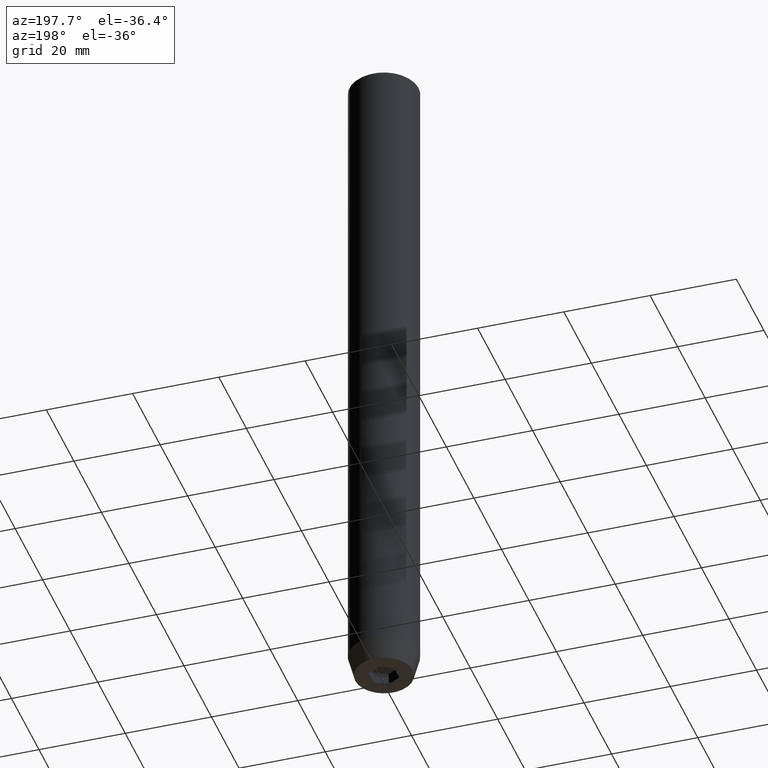
[diagram: clean part render]
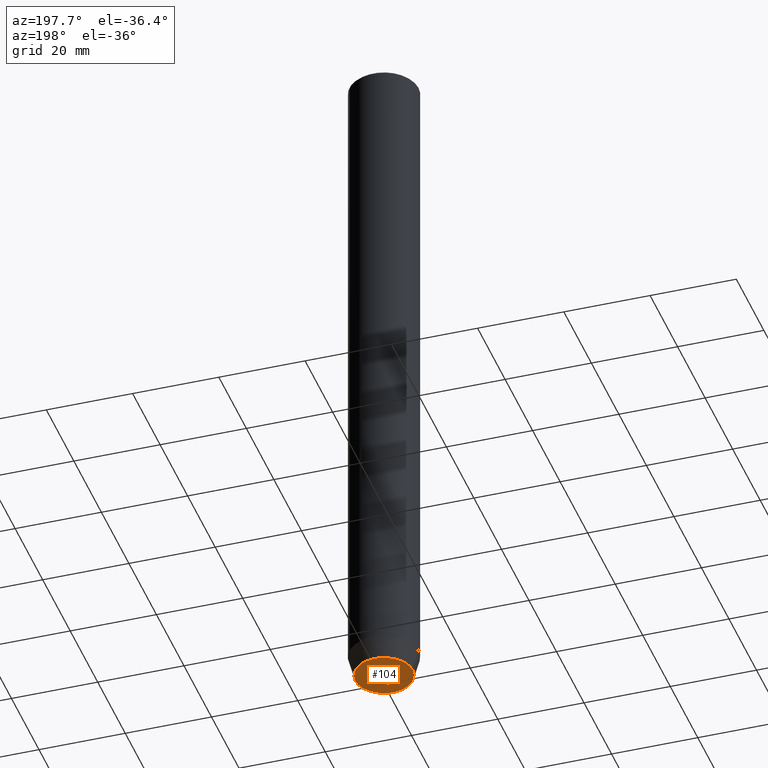
[diagram: same view with one face highlighted and labeled with its STEP entity id]
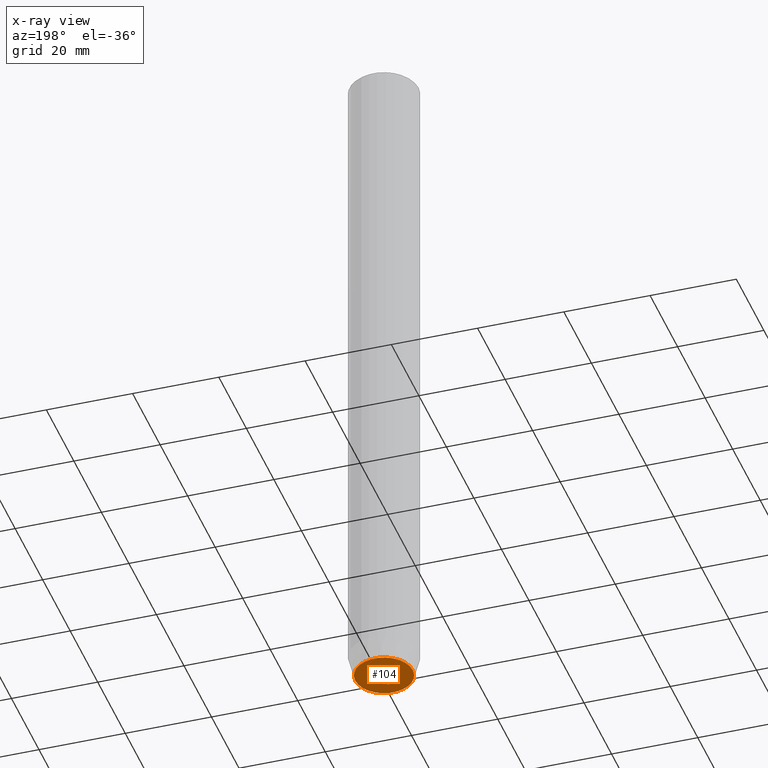
[diagram: x-ray of the same camera — body ghosted, the highlighted face saturated]
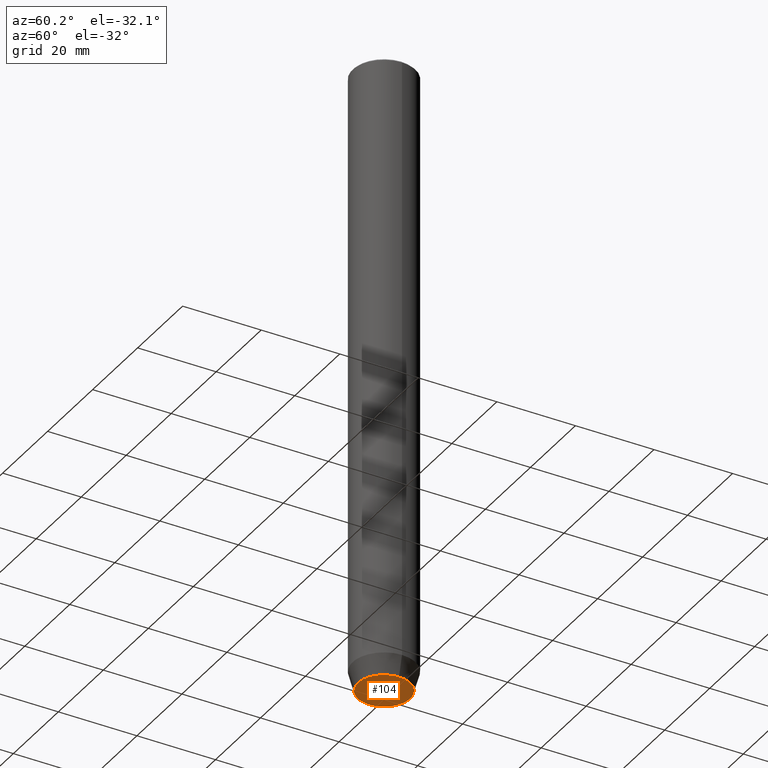
[diagram: same view with one face highlighted and labeled with its STEP entity id]
A machine part, auxiliary view. The second image highlights one B-rep face of the part: STEP entity #104.
The next image is the same camera in x-ray: the body ghosted, the highlighted face saturated — about 0% of this face is hidden behind the body in this view.
A second angle (auxiliary view) of the same face is appended — the face is thin or edge-on in the first view.
In plain terms, the highlighted planar face has unit normal (0, 0, -1).
Its self-contained STEP definition (entity closure, byte-faithful):
#1 = VERTEX_POINT ( 'NONE', #272 ) ;
#5 = FACE_BOUND ( 'NONE', #535, .T. ) ;
#16 = AXIS2_PLACEMENT_3D ( 'NONE', #577, #337, #525 ) ;
#18 = CARTESIAN_POINT ( 'NONE',  ( -1.499999999999999556, 2.598076211353316012, -160.0000000000000000 ) ) ;
#31 = VECTOR ( 'NONE', #388, 1000.000000000000000 ) ;
#33 = EDGE_CURVE ( 'NONE', #1, #355, #491, .T. ) ;
#36 = EDGE_CURVE ( 'NONE', #411, #204, #487, .T. ) ;
#46 = VERTEX_POINT ( 'NONE', #384 ) ;
#55 = CARTESIAN_POINT ( 'NONE',  ( 1.500000000000000222, -2.598076211353315568, -160.0000000000000000 ) ) ;
#63 = CARTESIAN_POINT ( 'NONE',  ( -1.500000000000000666, -2.598076211353316456, -160.0000000000000000 ) ) ;
#69 = DIRECTION ( 'NONE',  ( -0.000000000000000000, -0.000000000000000000, 1.000000000000000000 ) ) ;
#83 = PLANE ( 'NONE',  #346 ) ;
#85 = EDGE_CURVE ( 'NONE', #236, #411, #473, .T. ) ;
#97 = CARTESIAN_POINT ( 'NONE',  ( -3.000000000000000444, -7.511572993685800087E-16, -160.0000000000000000 ) ) ;
#104 = ADVANCED_FACE ( 'NONE', ( #5, #552 ), #83, .T. ) ;
#106 = CARTESIAN_POINT ( 'NONE',  ( -6.660254037844374864, 8.976816591066587293E-16, -160.0000000000000000 ) ) ;
#117 = VERTEX_POINT ( 'NONE', #106 ) ;
#143 = DIRECTION ( 'NONE',  ( -0.8660254037844385966, 0.5000000000000001110, 0.000000000000000000 ) ) ;
#153 = DIRECTION ( 'NONE',  ( 1.000000000000000000, 0.000000000000000000, 0.000000000000000000 ) ) ;
#156 = CARTESIAN_POINT ( 'NONE',  ( 3.000000000000000000, -1.732050807568876527, -160.0000000000000000 ) ) ;
#177 = VECTOR ( 'NONE', #402, 1000.000000000000000 ) ;
#183 = ORIENTED_EDGE ( 'NONE', *, *, #226, .F. ) ;
#193 = EDGE_LOOP ( 'NONE', ( #183, #304 ) ) ;
#196 = EDGE_CURVE ( 'NONE', #355, #46, #560, .T. ) ;
#204 = VERTEX_POINT ( 'NONE', #556 ) ;
#212 = CARTESIAN_POINT ( 'NONE',  ( 6.660254037844374864, 0.000000000000000000, -160.0000000000000000 ) ) ;
#226 = EDGE_CURVE ( 'NONE', #521, #117, #442, .T. ) ;
#236 = VERTEX_POINT ( 'NONE', #410 ) ;
#242 = EDGE_CURVE ( 'NONE', #204, #1, #504, .T. ) ;
#249 = CARTESIAN_POINT ( 'NONE',  ( 3.000000000000000000, 0.000000000000000000, -160.0000000000000000 ) ) ;
#259 = CARTESIAN_POINT ( 'NONE',  ( 0.000000000000000000, 6.660254037844374864, -160.0000000000000000 ) ) ;
#260 = VECTOR ( 'NONE', #448, 1000.000000000000000 ) ;
#261 = AXIS2_PLACEMENT_3D ( 'NONE', #281, #69, #153 ) ;
#272 = CARTESIAN_POINT ( 'NONE',  ( -3.000000000000000000, -1.732050807568877859, -160.0000000000000000 ) ) ;
#275 = DIRECTION ( 'NONE',  ( 0.8660254037844387076, 0.4999999999999999445, 0.000000000000000000 ) ) ;
#281 = CARTESIAN_POINT ( 'NONE',  ( 0.000000000000000000, 0.000000000000000000, -160.0000000000000000 ) ) ;
#304 = ORIENTED_EDGE ( 'NONE', *, *, #478, .F. ) ;
#311 = ORIENTED_EDGE ( 'NONE', *, *, #33, .F. ) ;
#337 = DIRECTION ( 'NONE',  ( -0.000000000000000000, -0.000000000000000000, 1.000000000000000000 ) ) ;
#345 = CARTESIAN_POINT ( 'NONE',  ( 1.500000000000000222, 2.598076211353315568, -160.0000000000000000 ) ) ;
#346 = AXIS2_PLACEMENT_3D ( 'NONE', #259, #441, #544 ) ;
#355 = VERTEX_POINT ( 'NONE', #574 ) ;
#368 = VECTOR ( 'NONE', #275, 999.9999999999998863 ) ;
#384 = CARTESIAN_POINT ( 'NONE',  ( -2.168404344971008868E-16, 3.464101615137753498, -160.0000000000000000 ) ) ;
#388 = DIRECTION ( 'NONE',  ( 0.000000000000000000, -1.000000000000000000, 0.000000000000000000 ) ) ;
#395 = ORIENTED_EDGE ( 'NONE', *, *, #549, .F. ) ;
#399 = LINE ( 'NONE', #345, #177 ) ;
#402 = DIRECTION ( 'NONE',  ( 0.8660254037844385966, -0.5000000000000001110, 0.000000000000000000 ) ) ;
#410 = CARTESIAN_POINT ( 'NONE',  ( 3.000000000000000000, 1.732050807568876527, -160.0000000000000000 ) ) ;
#411 = VERTEX_POINT ( 'NONE', #156 ) ;
#441 = DIRECTION ( 'NONE',  ( 0.000000000000000000, 0.000000000000000000, -1.000000000000000000 ) ) ;
#442 = CIRCLE ( 'NONE', #261, 6.660254037844374864 ) ;
#445 = ORIENTED_EDGE ( 'NONE', *, *, #196, .F. ) ;
#448 = DIRECTION ( 'NONE',  ( -2.503857664561932376E-16, 1.000000000000000000, 0.000000000000000000 ) ) ;
#449 = ORIENTED_EDGE ( 'NONE', *, *, #242, .F. ) ;
#473 = LINE ( 'NONE', #249, #31 ) ;
#478 = EDGE_CURVE ( 'NONE', #117, #521, #571, .T. ) ;
#487 = LINE ( 'NONE', #55, #537 ) ;
#491 = LINE ( 'NONE', #97, #260 ) ;
#495 = DIRECTION ( 'NONE',  ( -0.8660254037844385966, -0.5000000000000001110, 0.000000000000000000 ) ) ;
#504 = LINE ( 'NONE', #63, #538 ) ;
#517 = ORIENTED_EDGE ( 'NONE', *, *, #85, .F. ) ;
#521 = VERTEX_POINT ( 'NONE', #212 ) ;
#525 = DIRECTION ( 'NONE',  ( 1.000000000000000000, 0.000000000000000000, 0.000000000000000000 ) ) ;
#532 = ORIENTED_EDGE ( 'NONE', *, *, #36, .F. ) ;
#535 = EDGE_LOOP ( 'NONE', ( #445, #311, #449, #532, #517, #395 ) ) ;
#537 = VECTOR ( 'NONE', #495, 1000.000000000000000 ) ;
#538 = VECTOR ( 'NONE', #143, 1000.000000000000000 ) ;
#544 = DIRECTION ( 'NONE',  ( -1.000000000000000000, 0.000000000000000000, -0.000000000000000000 ) ) ;
#549 = EDGE_CURVE ( 'NONE', #46, #236, #399, .T. ) ;
#552 = FACE_OUTER_BOUND ( 'NONE', #193, .T. ) ;
#556 = CARTESIAN_POINT ( 'NONE',  ( -2.168404344971008868E-16, -3.464101615137754830, -160.0000000000000000 ) ) ;
#560 = LINE ( 'NONE', #18, #368 ) ;
#571 = CIRCLE ( 'NONE', #16, 6.660254037844374864 ) ;
#574 = CARTESIAN_POINT ( 'NONE',  ( -3.000000000000000888, 1.732050807568876527, -160.0000000000000000 ) ) ;
#577 = CARTESIAN_POINT ( 'NONE',  ( 0.000000000000000000, 0.000000000000000000, -160.0000000000000000 ) ) ;